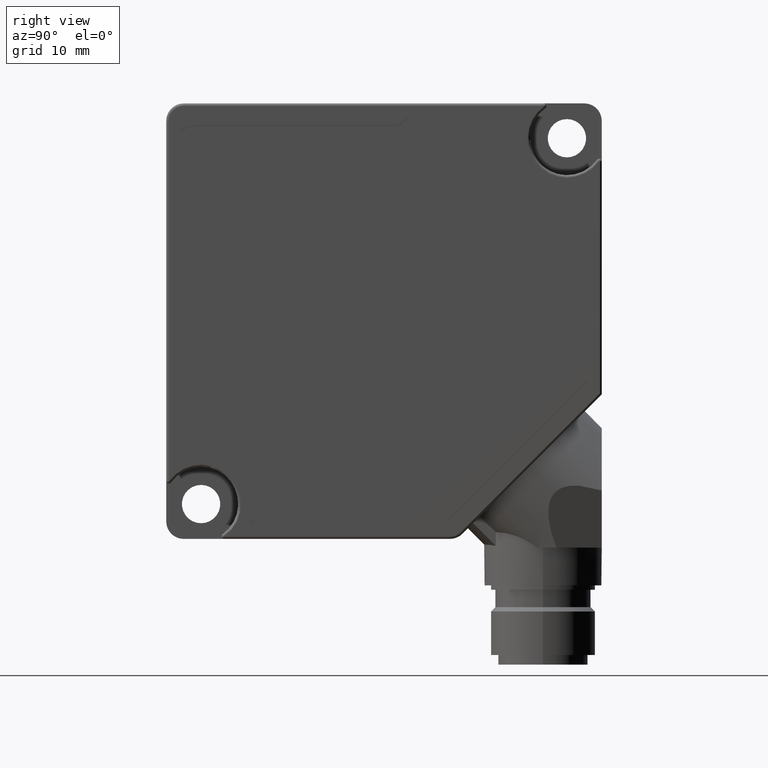
[diagram: clean part render]
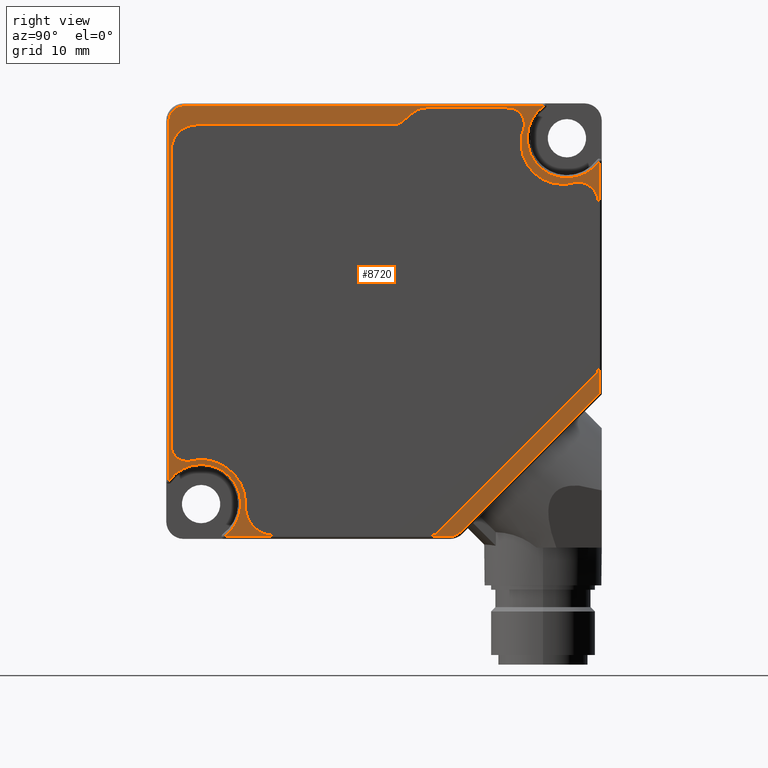
[diagram: same view with one face highlighted and labeled with its STEP entity id]
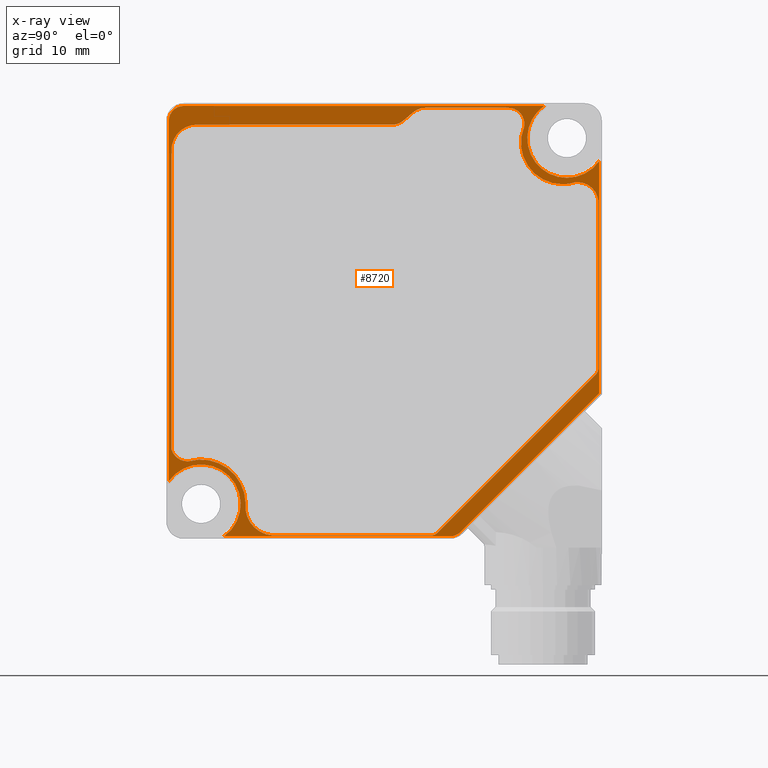
[diagram: x-ray of the same camera — body ghosted, the highlighted face saturated]
A machine part, right view. The second image highlights one B-rep face of the part: STEP entity #8720.
The next image is the same camera in x-ray: the body ghosted, the highlighted face saturated — about 0% of this face is hidden behind the body in this view.
In plain terms, the highlighted planar face has unit normal (1, 0, 0).
Its self-contained STEP definition (entity closure, byte-faithful):
#2 = AXIS2_PLACEMENT_3D ( 'NONE', #3494, #11149, #4620 ) ;
#167 = VERTEX_POINT ( 'NONE', #3950 ) ;
#181 = AXIS2_PLACEMENT_3D ( 'NONE', #9120, #2545, #10215 ) ;
#218 = CARTESIAN_POINT ( 'NONE',  ( 10.00000000000000000, 5.450862197129485900, -24.59999999999999100 ) ) ;
#221 = CARTESIAN_POINT ( 'NONE',  ( 10.00000000000000000, 21.00000000000051900, 16.45000000000076300 ) ) ;
#259 = ORIENTED_EDGE ( 'NONE', *, *, #1194, .T. ) ;
#264 = VERTEX_POINT ( 'NONE', #221 ) ;
#303 = CARTESIAN_POINT ( 'NONE',  ( 10.00000000000000000, 4.772730109181013700, 24.48649578594816500 ) ) ;
#332 = EDGE_CURVE ( 'NONE', #6478, #2871, #13025, .T. ) ;
#591 = CIRCLE ( 'NONE', #890, 1.912846764730597600 ) ;
#656 = LINE ( 'NONE', #2518, #11950 ) ;
#728 = ORIENTED_EDGE ( 'NONE', *, *, #10388, .T. ) ;
#738 = DIRECTION ( 'NONE',  ( -1.000000000000000000, -0.0000000000000000000, -0.0000000000000000000 ) ) ;
#769 = CARTESIAN_POINT ( 'NONE',  ( 10.00000000000000000, 3.355049469341893100, 23.96881014522390500 ) ) ;
#778 = CARTESIAN_POINT ( 'NONE',  ( 10.00000000000000000, 22.22348153348595900, 13.55863533458049000 ) ) ;
#823 = CARTESIAN_POINT ( 'NONE',  ( 10.00000000000000000, 2.175285842334393900, 22.97462731347599900 ) ) ;
#862 = ORIENTED_EDGE ( 'NONE', *, *, #12347, .T. ) ;
#890 = AXIS2_PLACEMENT_3D ( 'NONE', #1634, #9312, #2736 ) ;
#938 = ORIENTED_EDGE ( 'NONE', *, *, #13436, .T. ) ;
#960 = VERTEX_POINT ( 'NONE', #8076 ) ;
#986 = EDGE_CURVE ( 'NONE', #4537, #2325, #8670, .T. ) ;
#1021 = VERTEX_POINT ( 'NONE', #7178 ) ;
#1077 = DIRECTION ( 'NONE',  ( -1.000000000000000000, -0.0000000000000000000, -0.0000000000000000000 ) ) ;
#1086 = DIRECTION ( 'NONE',  ( 0.0000000000000000000, -1.912032204741062200E-011, 1.000000000000000000 ) ) ;
#1098 = CARTESIAN_POINT ( 'NONE',  ( 10.00000000000000000, -22.40373175078568100, -16.08653586210428400 ) ) ;
#1194 = EDGE_CURVE ( 'NONE', #11736, #11474, #1758, .T. ) ;
#1253 = CIRCLE ( 'NONE', #2751, 4.744503580026308700 ) ;
#1347 = VECTOR ( 'NONE', #8893, 1000.000000000000000 ) ;
#1378 = AXIS2_PLACEMENT_3D ( 'NONE', #5053, #12663, #6179 ) ;
#1571 = CARTESIAN_POINT ( 'NONE',  ( 10.00000000000000000, -21.00000000000180500, -21.00000000000180800 ) ) ;
#1634 = CARTESIAN_POINT ( 'NONE',  ( 10.00000000000000000, -22.56723011106437200, -14.18068932276107000 ) ) ;
#1674 = ORIENTED_EDGE ( 'NONE', *, *, #986, .T. ) ;
#1694 = ORIENTED_EDGE ( 'NONE', *, *, #12260, .T. ) ;
#1729 = LINE ( 'NONE', #4283, #13335 ) ;
#1758 = CIRCLE ( 'NONE', #8981, 2.901590473623767900 ) ;
#1819 = CARTESIAN_POINT ( 'NONE',  ( 10.00000000000000000, -22.56723011106437200, -16.09353608749166800 ) ) ;
#1886 = DIRECTION ( 'NONE',  ( 0.0000000000000000000, 0.0000000000000000000, -1.000000000000000000 ) ) ;
#1949 = FACE_OUTER_BOUND ( 'NONE', #13817, .T. ) ;
#2083 = CARTESIAN_POINT ( 'NONE',  ( 10.00000000000000000, -21.31765921779839300, 22.55106633470160900 ) ) ;
#2149 = CARTESIAN_POINT ( 'NONE',  ( 10.00000000000000000, 2.175285842334393500, 22.97462731347599900 ) ) ;
#2169 = CARTESIAN_POINT ( 'NONE',  ( 10.00000000000000000, 24.69999999999999900, -8.289735931288078100 ) ) ;
#2248 = VECTOR ( 'NONE', #13220, 1000.000000000000100 ) ;
#2284 = CARTESIAN_POINT ( 'NONE',  ( 10.00000000000000000, -24.69999999999998200, -18.35188746462688800 ) ) ;
#2323 = CIRCLE ( 'NONE', #4466, 1.912846764730597600 ) ;
#2325 = VERTEX_POINT ( 'NONE', #1098 ) ;
#2359 = EDGE_CURVE ( 'NONE', #12457, #960, #10567, .T. ) ;
#2396 = VECTOR ( 'NONE', #8739, 1000.000000000000000 ) ;
#2436 = CARTESIAN_POINT ( 'NONE',  ( 10.00000000000000000, 5.450862197129485900, -23.64999999999999100 ) ) ;
#2518 = CARTESIAN_POINT ( 'NONE',  ( 10.00000000000000000, 8.414000000000001500, -24.69999999999999900 ) ) ;
#2521 = DIRECTION ( 'NONE',  ( 0.0000000000000000000, 1.000000000000000000, 3.713029570255039100E-016 ) ) ;
#2537 = CIRCLE ( 'NONE', #181, 4.549999999999700500 ) ;
#2545 = DIRECTION ( 'NONE',  ( -1.000000000000000000, -0.0000000000000000000, -0.0000000000000000000 ) ) ;
#2569 = CARTESIAN_POINT ( 'NONE',  ( 10.00000000000000000, 20.46843691131362100, 20.46329335647410700 ) ) ;
#2586 = ORIENTED_EDGE ( 'NONE', *, *, #9774, .T. ) ;
#2655 = DIRECTION ( 'NONE',  ( -1.000000000000000000, 0.0000000000000000000, 0.0000000000000000000 ) ) ;
#2683 = DIRECTION ( 'NONE',  ( 0.0000000000000000000, 0.0000000000000000000, -1.000000000000000000 ) ) ;
#2736 = DIRECTION ( 'NONE',  ( 0.0000000000000000000, 0.0000000000000000000, -1.000000000000000000 ) ) ;
#2751 = AXIS2_PLACEMENT_3D ( 'NONE', #5400, #12989, #6510 ) ;
#2797 = VERTEX_POINT ( 'NONE', #12632 ) ;
#2822 = EDGE_CURVE ( 'NONE', #9188, #6780, #12553, .T. ) ;
#2871 = VERTEX_POINT ( 'NONE', #10608 ) ;
#2937 = VECTOR ( 'NONE', #1086, 1000.000000000000000 ) ;
#2941 = VECTOR ( 'NONE', #6137, 1000.000000000000000 ) ;
#3010 = EDGE_CURVE ( 'NONE', #167, #6478, #1253, .T. ) ;
#3075 = CARTESIAN_POINT ( 'NONE',  ( 10.00000000000000000, 24.59999999999999400, 13.25441742560608600 ) ) ;
#3095 = ORIENTED_EDGE ( 'NONE', *, *, #4867, .T. ) ;
#3155 = ORIENTED_EDGE ( 'NONE', *, *, #3491, .T. ) ;
#3246 = CARTESIAN_POINT ( 'NONE',  ( 10.00000000000000000, -22.99999999999997500, 24.69999999999999900 ) ) ;
#3305 = DIRECTION ( 'NONE',  ( 0.0000000000000000000, -1.000000000000000000, 3.233555726807797400E-015 ) ) ;
#3355 = VERTEX_POINT ( 'NONE', #8049 ) ;
#3491 = EDGE_CURVE ( 'NONE', #6748, #5014, #5887, .T. ) ;
#3494 = CARTESIAN_POINT ( 'NONE',  ( 10.00000000000000000, 1.015365318829660100, 24.35106633470160300 ) ) ;
#3504 = VERTEX_POINT ( 'NONE', #13715 ) ;
#3518 = CIRCLE ( 'NONE', #10321, 2.395910799220824400 ) ;
#3538 = DIRECTION ( 'NONE',  ( 0.0000000000000000000, 0.0000000000000000000, 1.000000000000000000 ) ) ;
#3677 = DIRECTION ( 'NONE',  ( 0.0000000000000000000, 0.0000000000000000000, -1.000000000000000000 ) ) ;
#3761 = EDGE_CURVE ( 'NONE', #6755, #12288, #1729, .T. ) ;
#3790 = DIRECTION ( 'NONE',  ( 1.000000000000000000, 0.0000000000000000000, 0.0000000000000000000 ) ) ;
#3836 = EDGE_CURVE ( 'NONE', #3504, #9720, #13295, .T. ) ;
#3897 = DIRECTION ( 'NONE',  ( -1.000000000000000000, -0.0000000000000000000, -0.0000000000000000000 ) ) ;
#3917 = DIRECTION ( 'NONE',  ( -1.000000000000000000, 0.0000000000000000000, 0.0000000000000000000 ) ) ;
#3950 = CARTESIAN_POINT ( 'NONE',  ( 10.00000000000000000, 16.08892242460627700, 22.28816789506651500 ) ) ;
#3952 = EDGE_LOOP ( 'NONE', ( #1694, #259, #5293, #7061, #11146, #10534, #12835, #8136, #13257, #9046, #5431, #13551, #11282, #11619, #7683, #7855, #11475, #1674, #6284, #3095 ) ) ;
#4206 = VECTOR ( 'NONE', #11602, 1000.000000000000000 ) ;
#4283 = CARTESIAN_POINT ( 'NONE',  ( 10.00000000000000000, 24.32175144212226700, -6.122613639262360700 ) ) ;
#4406 = VECTOR ( 'NONE', #2521, 1000.000000000000000 ) ;
#4435 = ORIENTED_EDGE ( 'NONE', *, *, #9189, .T. ) ;
#4461 = CARTESIAN_POINT ( 'NONE',  ( 10.00000000000000000, -15.89183969675968600, -20.86110803139260000 ) ) ;
#4466 = AXIS2_PLACEMENT_3D ( 'NONE', #6158, #13730, #7247 ) ;
#4527 = CARTESIAN_POINT ( 'NONE',  ( 10.00000000000000000, -18.35188746462545600, -24.69999999999869900 ) ) ;
#4537 = VERTEX_POINT ( 'NONE', #4461 ) ;
#4543 = DIRECTION ( 'NONE',  ( -1.000000000000000000, -0.0000000000000000000, -0.0000000000000000000 ) ) ;
#4609 = DIRECTION ( 'NONE',  ( -1.000000000000000000, -0.0000000000000000000, -0.0000000000000000000 ) ) ;
#4620 = DIRECTION ( 'NONE',  ( 0.0000000000000000000, 0.0000000000000000000, -1.000000000000000000 ) ) ;
#4661 = VERTEX_POINT ( 'NONE', #8017 ) ;
#4665 = EDGE_CURVE ( 'NONE', #7029, #3355, #7353, .T. ) ;
#4867 = EDGE_CURVE ( 'NONE', #7758, #10965, #2323, .T. ) ;
#4965 = EDGE_CURVE ( 'NONE', #2871, #4661, #3518, .T. ) ;
#5014 = VERTEX_POINT ( 'NONE', #7496 ) ;
#5020 = CARTESIAN_POINT ( 'NONE',  ( 10.00000000000000000, -22.99999999999997200, 24.69999999999999900 ) ) ;
#5053 = CARTESIAN_POINT ( 'NONE',  ( 10.00000000000000000, -12.58635869798284700, -21.27490654219727200 ) ) ;
#5086 = EDGE_CURVE ( 'NONE', #11474, #11514, #10551, .T. ) ;
#5125 = CARTESIAN_POINT ( 'NONE',  ( 10.00000000000000000, -24.39783230892218700, -14.73555717958687300 ) ) ;
#5187 = LINE ( 'NONE', #5640, #2248 ) ;
#5293 = ORIENTED_EDGE ( 'NONE', *, *, #5086, .T. ) ;
#5331 = CIRCLE ( 'NONE', #11021, 0.9500000000000002900 ) ;
#5400 = CARTESIAN_POINT ( 'NONE',  ( 10.00000000000000000, 20.46843691131362100, 20.46329335647410700 ) ) ;
#5431 = ORIENTED_EDGE ( 'NONE', *, *, #4965, .T. ) ;
#5505 = DIRECTION ( 'NONE',  ( 1.000000000000000000, 0.0000000000000000000, 0.0000000000000000000 ) ) ;
#5640 = CARTESIAN_POINT ( 'NONE',  ( 10.00000000000000000, 24.78786796564404300, -8.201867965644035900 ) ) ;
#5703 = VERTEX_POINT ( 'NONE', #769 ) ;
#5887 = LINE ( 'NONE', #9363, #2941 ) ;
#6137 = DIRECTION ( 'NONE',  ( -0.0000000000000000000, 0.0000000000000000000, 1.000000000000000000 ) ) ;
#6158 = CARTESIAN_POINT ( 'NONE',  ( 10.00000000000000000, -22.56723011106437200, -14.18068932276107000 ) ) ;
#6179 = DIRECTION ( 'NONE',  ( 0.0000000000000000000, 0.0000000000000000000, -1.000000000000000000 ) ) ;
#6284 = ORIENTED_EDGE ( 'NONE', *, *, #6556, .T. ) ;
#6376 = DIRECTION ( 'NONE',  ( -0.0000000000000000000, -2.643083667417159700E-013, -1.000000000000000000 ) ) ;
#6478 = VERTEX_POINT ( 'NONE', #9904 ) ;
#6510 = DIRECTION ( 'NONE',  ( 0.0000000000000000000, 0.0000000000000000000, -1.000000000000000000 ) ) ;
#6556 = EDGE_CURVE ( 'NONE', #2325, #7758, #591, .T. ) ;
#6676 = AXIS2_PLACEMENT_3D ( 'NONE', #10363, #3790, #11456 ) ;
#6748 = VERTEX_POINT ( 'NONE', #2169 ) ;
#6755 = VERTEX_POINT ( 'NONE', #12978 ) ;
#6780 = VERTEX_POINT ( 'NONE', #3246 ) ;
#6969 = VECTOR ( 'NONE', #9761, 1000.000000000000000 ) ;
#7029 = VERTEX_POINT ( 'NONE', #11387 ) ;
#7061 = ORIENTED_EDGE ( 'NONE', *, *, #7502, .T. ) ;
#7178 = CARTESIAN_POINT ( 'NONE',  ( 10.00000000000000000, -24.69999999999998200, 22.99999999999998600 ) ) ;
#7184 = CIRCLE ( 'NONE', #2, 1.799999999999999600 ) ;
#7247 = DIRECTION ( 'NONE',  ( 0.0000000000000000000, 0.0000000000000000000, -1.000000000000000000 ) ) ;
#7269 = VERTEX_POINT ( 'NONE', #9961 ) ;
#7353 = LINE ( 'NONE', #303, #4406 ) ;
#7369 = CARTESIAN_POINT ( 'NONE',  ( 10.00000000000000000, 21.00000000000051900, 21.00000000000046200 ) ) ;
#7496 = CARTESIAN_POINT ( 'NONE',  ( 10.00000000000000000, 24.69999999999999900, 18.35188746462671700 ) ) ;
#7497 = CIRCLE ( 'NONE', #9402, 1.700000000000000200 ) ;
#7502 = EDGE_CURVE ( 'NONE', #11514, #11674, #7184, .T. ) ;
#7683 = ORIENTED_EDGE ( 'NONE', *, *, #10040, .T. ) ;
#7712 = CARTESIAN_POINT ( 'NONE',  ( 10.00000000000000000, 23.64999999999505000, -5.450862197135138300 ) ) ;
#7716 = CARTESIAN_POINT ( 'NONE',  ( 10.00000000000000000, -24.39783230892218700, -14.73555717958687300 ) ) ;
#7758 = VERTEX_POINT ( 'NONE', #1819 ) ;
#7773 = AXIS2_PLACEMENT_3D ( 'NONE', #2436, #10103, #3538 ) ;
#7855 = ORIENTED_EDGE ( 'NONE', *, *, #2359, .T. ) ;
#7870 = AXIS2_PLACEMENT_3D ( 'NONE', #11138, #4609, #12211 ) ;
#8017 = CARTESIAN_POINT ( 'NONE',  ( 10.00000000000000000, 24.59999999999999400, 13.25441742560608600 ) ) ;
#8049 = CARTESIAN_POINT ( 'NONE',  ( 10.00000000000000000, 14.11670889067858600, 24.48649578594816800 ) ) ;
#8065 = CIRCLE ( 'NONE', #10835, 1.852144326035785300 ) ;
#8076 = CARTESIAN_POINT ( 'NONE',  ( 10.00000000000000000, -12.78930533554444400, -24.59999999999993000 ) ) ;
#8136 = ORIENTED_EDGE ( 'NONE', *, *, #9253, .T. ) ;
#8227 = AXIS2_PLACEMENT_3D ( 'NONE', #10449, #3897, #11539 ) ;
#8351 = CARTESIAN_POINT ( 'NONE',  ( 10.00000000000000000, 1.015365318829651000, 22.55106633470160600 ) ) ;
#8450 = DIRECTION ( 'NONE',  ( 0.0000000000000000000, 0.0000000000000000000, -1.000000000000000000 ) ) ;
#8489 = DIRECTION ( 'NONE',  ( -1.000000000000000000, 0.0000000000000000000, 0.0000000000000000000 ) ) ;
#8569 = EDGE_CURVE ( 'NONE', #7269, #13406, #7497, .T. ) ;
#8670 = CIRCLE ( 'NONE', #9516, 5.110048205502939900 ) ;
#8720 = ADVANCED_FACE ( 'NONE', ( #1949, #13214 ), #11417, .T. ) ;
#8739 = DIRECTION ( 'NONE',  ( 0.0000000000000000000, 0.7646883451253350100, 0.6444002908359651700 ) ) ;
#8795 = DIRECTION ( 'NONE',  ( 0.0000000000000000000, 0.0000000000000000000, 1.000000000000000000 ) ) ;
#8862 = CARTESIAN_POINT ( 'NONE',  ( 10.00000000000000000, 5.450862197129485900, -24.59999999999999100 ) ) ;
#8893 = DIRECTION ( 'NONE',  ( 0.0000000000000000000, -0.0000000000000000000, -1.000000000000000000 ) ) ;
#8972 = EDGE_CURVE ( 'NONE', #11674, #5703, #9429, .T. ) ;
#8981 = AXIS2_PLACEMENT_3D ( 'NONE', #10469, #3917, #11564 ) ;
#9046 = ORIENTED_EDGE ( 'NONE', *, *, #332, .T. ) ;
#9091 = DIRECTION ( 'NONE',  ( -0.0000000000000000000, 1.000000000000000000, -0.0000000000000000000 ) ) ;
#9120 = CARTESIAN_POINT ( 'NONE',  ( 10.00000000000000000, 21.00000000000051900, 21.00000000000046200 ) ) ;
#9121 = LINE ( 'NONE', #7716, #2937 ) ;
#9188 = VERTEX_POINT ( 'NONE', #13449 ) ;
#9189 = EDGE_CURVE ( 'NONE', #9720, #13406, #656, .T. ) ;
#9234 = CARTESIAN_POINT ( 'NONE',  ( 10.00000000000000000, 14.27064920895239000, 22.64075989398626400 ) ) ;
#9252 = DIRECTION ( 'NONE',  ( 1.000000000000000000, -0.0000000000000000000, -0.0000000000000000000 ) ) ;
#9253 = EDGE_CURVE ( 'NONE', #3355, #167, #8065, .T. ) ;
#9312 = DIRECTION ( 'NONE',  ( -1.000000000000000000, 0.0000000000000000000, 0.0000000000000000000 ) ) ;
#9363 = CARTESIAN_POINT ( 'NONE',  ( 10.00000000000000000, 24.69999999999999900, 18.35188746462690200 ) ) ;
#9402 = AXIS2_PLACEMENT_3D ( 'NONE', #11081, #4543, #12150 ) ;
#9429 = LINE ( 'NONE', #2149, #2396 ) ;
#9516 = AXIS2_PLACEMENT_3D ( 'NONE', #1571, #9252, #2683 ) ;
#9551 = EDGE_CURVE ( 'NONE', #4661, #2797, #13462, .T. ) ;
#9624 = EDGE_CURVE ( 'NONE', #6780, #1021, #12610, .T. ) ;
#9720 = VERTEX_POINT ( 'NONE', #4527 ) ;
#9761 = DIRECTION ( 'NONE',  ( 0.0000000000000000000, 1.000000000000000000, -1.553505189708375000E-016 ) ) ;
#9774 = EDGE_CURVE ( 'NONE', #5014, #264, #2537, .T. ) ;
#9902 = EDGE_CURVE ( 'NONE', #960, #4537, #10082, .T. ) ;
#9904 = CARTESIAN_POINT ( 'NONE',  ( 10.00000000000000000, 20.46843691131362100, 15.71878977644780000 ) ) ;
#9961 = CARTESIAN_POINT ( 'NONE',  ( 10.00000000000000000, 8.787654403270943600, -24.20208152801713600 ) ) ;
#10040 = EDGE_CURVE ( 'NONE', #12288, #12457, #12935, .T. ) ;
#10082 = CIRCLE ( 'NONE', #1378, 3.331281111047055300 ) ;
#10103 = DIRECTION ( 'NONE',  ( -1.000000000000000000, -0.0000000000000000000, -0.0000000000000000000 ) ) ;
#10215 = DIRECTION ( 'NONE',  ( 0.0000000000000000000, -1.525031627232458200E-015, -1.000000000000000000 ) ) ;
#10236 = AXIS2_PLACEMENT_3D ( 'NONE', #2569, #10251, #3677 ) ;
#10251 = DIRECTION ( 'NONE',  ( 1.000000000000000000, -0.0000000000000000000, -0.0000000000000000000 ) ) ;
#10285 = AXIS2_PLACEMENT_3D ( 'NONE', #12001, #5505, #13101 ) ;
#10316 = DIRECTION ( 'NONE',  ( 0.0000000000000000000, 0.0000000000000000000, -1.000000000000000000 ) ) ;
#10321 = AXIS2_PLACEMENT_3D ( 'NONE', #778, #8489, #1886 ) ;
#10363 = CARTESIAN_POINT ( 'NONE',  ( 10.00000000000000000, 23.00000000000000400, 23.00000000000000400 ) ) ;
#10388 = EDGE_CURVE ( 'NONE', #264, #9188, #13948, .T. ) ;
#10449 = CARTESIAN_POINT ( 'NONE',  ( 10.00000000000000000, -21.00000000000165900, -21.00000000000147400 ) ) ;
#10469 = CARTESIAN_POINT ( 'NONE',  ( 10.00000000000000000, -21.50125881136200300, 19.65529036514396900 ) ) ;
#10534 = ORIENTED_EDGE ( 'NONE', *, *, #13501, .T. ) ;
#10551 = LINE ( 'NONE', #2083, #6969 ) ;
#10567 = LINE ( 'NONE', #8862, #13089 ) ;
#10597 = VECTOR ( 'NONE', #6376, 1000.000000000000000 ) ;
#10608 = CARTESIAN_POINT ( 'NONE',  ( 10.00000000000000000, 21.85580603588105600, 15.92616638744630300 ) ) ;
#10829 = DIRECTION ( 'NONE',  ( -0.0000000000000000000, -0.7071067811865613400, -0.7071067811865335800 ) ) ;
#10835 = AXIS2_PLACEMENT_3D ( 'NONE', #9234, #2655, #10316 ) ;
#10965 = VERTEX_POINT ( 'NONE', #5125 ) ;
#10977 = ORIENTED_EDGE ( 'NONE', *, *, #8569, .F. ) ;
#11021 = AXIS2_PLACEMENT_3D ( 'NONE', #7712, #1077, #8795 ) ;
#11061 = ORIENTED_EDGE ( 'NONE', *, *, #9624, .T. ) ;
#11081 = CARTESIAN_POINT ( 'NONE',  ( 10.00000000000000000, 7.585572875253816100, -23.00000000000000000 ) ) ;
#11138 = CARTESIAN_POINT ( 'NONE',  ( 10.00000000000000000, 4.772730109181014600, 22.28649578594816600 ) ) ;
#11146 = ORIENTED_EDGE ( 'NONE', *, *, #8972, .T. ) ;
#11149 = DIRECTION ( 'NONE',  ( 1.000000000000000000, -0.0000000000000000000, -0.0000000000000000000 ) ) ;
#11282 = ORIENTED_EDGE ( 'NONE', *, *, #13345, .T. ) ;
#11286 = CIRCLE ( 'NONE', #7870, 2.200000000000000600 ) ;
#11387 = CARTESIAN_POINT ( 'NONE',  ( 10.00000000000000000, 4.772730109181014600, 24.48649578594816500 ) ) ;
#11417 = PLANE ( 'NONE',  #6676 ) ;
#11456 = DIRECTION ( 'NONE',  ( 0.0000000000000000000, 0.0000000000000000000, -1.000000000000000000 ) ) ;
#11474 = VERTEX_POINT ( 'NONE', #12531 ) ;
#11475 = ORIENTED_EDGE ( 'NONE', *, *, #9902, .T. ) ;
#11514 = VERTEX_POINT ( 'NONE', #8351 ) ;
#11539 = DIRECTION ( 'NONE',  ( 0.0000000000000000000, 0.0000000000000000000, -1.000000000000000000 ) ) ;
#11564 = DIRECTION ( 'NONE',  ( 0.0000000000000000000, 0.0000000000000000000, -1.000000000000000000 ) ) ;
#11602 = DIRECTION ( 'NONE',  ( -0.0000000000000000000, -1.000000000000000000, 0.0000000000000000000 ) ) ;
#11619 = ORIENTED_EDGE ( 'NONE', *, *, #3761, .T. ) ;
#11674 = VERTEX_POINT ( 'NONE', #823 ) ;
#11736 = VERTEX_POINT ( 'NONE', #11923 ) ;
#11758 = ORIENTED_EDGE ( 'NONE', *, *, #2822, .T. ) ;
#11923 = CARTESIAN_POINT ( 'NONE',  ( 10.00000000000000000, -24.39783230957649000, 19.48473466730392900 ) ) ;
#11950 = VECTOR ( 'NONE', #9091, 1000.000000000000000 ) ;
#11984 = CARTESIAN_POINT ( 'NONE',  ( 10.00000000000000000, 7.585572875253816100, -24.69999999999999900 ) ) ;
#12001 = CARTESIAN_POINT ( 'NONE',  ( 10.00000000000000000, -22.99999999999998600, 23.00000000000000400 ) ) ;
#12027 = ORIENTED_EDGE ( 'NONE', *, *, #3836, .T. ) ;
#12150 = DIRECTION ( 'NONE',  ( 0.0000000000000000000, -1.020425574104004000E-015, -1.000000000000000000 ) ) ;
#12211 = DIRECTION ( 'NONE',  ( 0.0000000000000000000, 0.0000000000000000000, 1.000000000000000000 ) ) ;
#12260 = EDGE_CURVE ( 'NONE', #10965, #11736, #9121, .T. ) ;
#12288 = VERTEX_POINT ( 'NONE', #13129 ) ;
#12347 = EDGE_CURVE ( 'NONE', #7269, #6748, #5187, .T. ) ;
#12457 = VERTEX_POINT ( 'NONE', #218 ) ;
#12531 = CARTESIAN_POINT ( 'NONE',  ( 10.00000000000000000, -21.31765921779839300, 22.55106633470160900 ) ) ;
#12553 = LINE ( 'NONE', #5020, #4206 ) ;
#12559 = AXIS2_PLACEMENT_3D ( 'NONE', #7369, #738, #8450 ) ;
#12610 = CIRCLE ( 'NONE', #10285, 1.699999999999996600 ) ;
#12632 = CARTESIAN_POINT ( 'NONE',  ( 10.00000000000000000, 24.59999999999504900, -5.450862197135389700 ) ) ;
#12640 = LINE ( 'NONE', #2284, #1347 ) ;
#12663 = DIRECTION ( 'NONE',  ( -1.000000000000000000, 0.0000000000000000000, 0.0000000000000000000 ) ) ;
#12835 = ORIENTED_EDGE ( 'NONE', *, *, #4665, .T. ) ;
#12935 = CIRCLE ( 'NONE', #7773, 0.9499999999999995100 ) ;
#12978 = CARTESIAN_POINT ( 'NONE',  ( 10.00000000000000000, 24.32175144212226700, -6.122613639262359800 ) ) ;
#12989 = DIRECTION ( 'NONE',  ( 1.000000000000000000, -0.0000000000000000000, -0.0000000000000000000 ) ) ;
#13025 = CIRCLE ( 'NONE', #10236, 4.744503580026308700 ) ;
#13089 = VECTOR ( 'NONE', #3305, 1000.000000000000000 ) ;
#13101 = DIRECTION ( 'NONE',  ( 0.0000000000000000000, 0.0000000000000000000, -1.000000000000000000 ) ) ;
#13129 = CARTESIAN_POINT ( 'NONE',  ( 10.00000000000000000, 6.122613639259238700, -24.32175144212467500 ) ) ;
#13214 = FACE_BOUND ( 'NONE', #3952, .T. ) ;
#13220 = DIRECTION ( 'NONE',  ( -0.0000000000000000000, 0.7071067811865474600, 0.7071067811865474600 ) ) ;
#13257 = ORIENTED_EDGE ( 'NONE', *, *, #3010, .T. ) ;
#13295 = CIRCLE ( 'NONE', #8227, 4.549999999999561100 ) ;
#13335 = VECTOR ( 'NONE', #10829, 1000.000000000000100 ) ;
#13345 = EDGE_CURVE ( 'NONE', #2797, #6755, #5331, .T. ) ;
#13406 = VERTEX_POINT ( 'NONE', #11984 ) ;
#13436 = EDGE_CURVE ( 'NONE', #1021, #3504, #12640, .T. ) ;
#13449 = CARTESIAN_POINT ( 'NONE',  ( 10.00000000000000000, 18.35188746462530700, 24.69999999999856400 ) ) ;
#13462 = LINE ( 'NONE', #3075, #10597 ) ;
#13501 = EDGE_CURVE ( 'NONE', #5703, #7029, #11286, .T. ) ;
#13551 = ORIENTED_EDGE ( 'NONE', *, *, #9551, .T. ) ;
#13715 = CARTESIAN_POINT ( 'NONE',  ( 10.00000000000000000, -24.69999999999970400, -18.35188746462642600 ) ) ;
#13730 = DIRECTION ( 'NONE',  ( -1.000000000000000000, 0.0000000000000000000, 0.0000000000000000000 ) ) ;
#13817 = EDGE_LOOP ( 'NONE', ( #10977, #862, #3155, #2586, #728, #11758, #11061, #938, #12027, #4435 ) ) ;
#13948 = CIRCLE ( 'NONE', #12559, 4.549999999999700500 ) ;